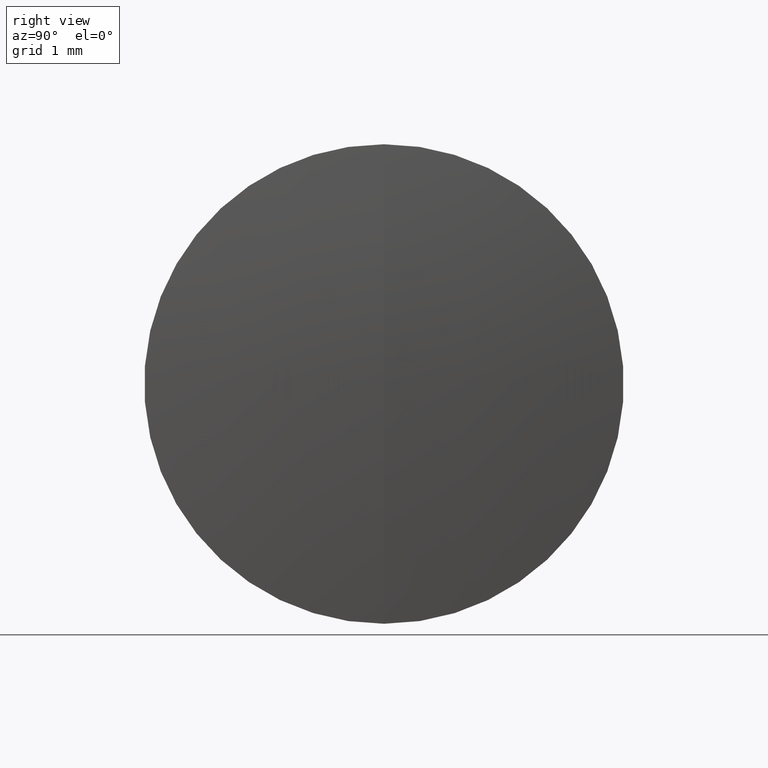
[diagram: clean part render]
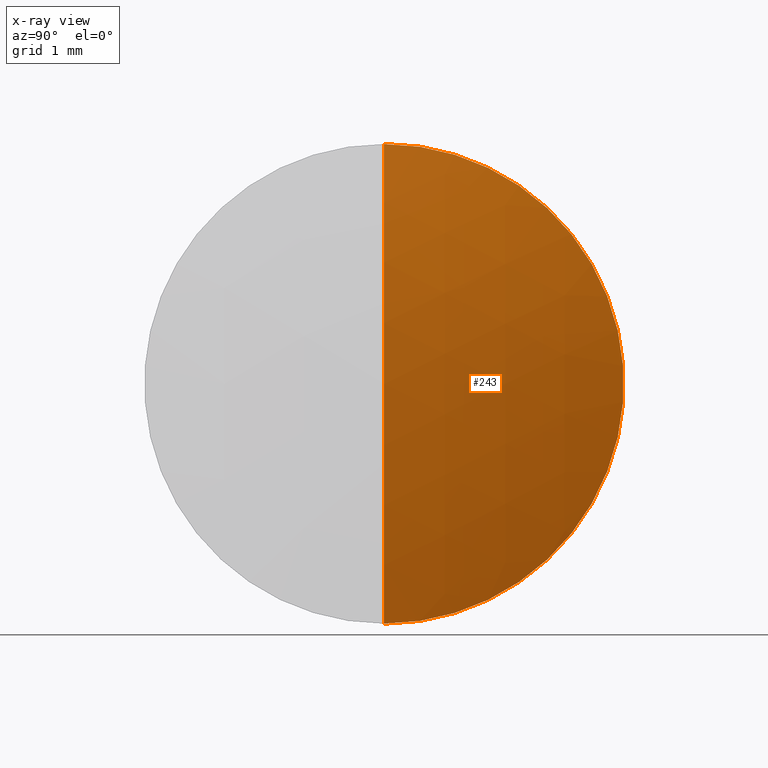
[diagram: x-ray — body ghosted, one internal face saturated and labeled with its STEP entity id]
A machine part, right view, then the same camera in x-ray: the body is ghosted and one INTERNAL B-rep face — a face not visible from any outside direction — is saturated and labeled: STEP entity #243.
In plain terms, the highlighted spherical surface has radius 9.993 mm.
Its self-contained STEP definition (entity closure, byte-faithful):
#3 = AXIS2_PLACEMENT_3D ( 'NONE', #249, #35, #138 ) ;
#18 = CIRCLE ( 'NONE', #134, 9.992999999999998600 ) ;
#23 = CARTESIAN_POINT ( 'NONE',  ( 8.563134654860508700, 0.0000000000000000000, 0.0000000000000000000 ) ) ;
#25 = DIRECTION ( 'NONE',  ( 0.0000000000000000000, 0.0000000000000000000, 1.000000000000000000 ) ) ;
#33 = AXIS2_PLACEMENT_3D ( 'NONE', #23, #217, #25 ) ;
#35 = DIRECTION ( 'NONE',  ( 0.0000000000000000000, -1.000000000000000000, 0.0000000000000000000 ) ) ;
#65 = CIRCLE ( 'NONE', #33, 3.149999999999999900 ) ;
#67 = EDGE_CURVE ( 'NONE', #141, #200, #18, .T. ) ;
#78 = CARTESIAN_POINT ( 'NONE',  ( -0.9204062977584012200, 0.0000000000000000000, -1.505155105265747400E-016 ) ) ;
#80 = AXIS2_PLACEMENT_3D ( 'NONE', #334, #156, #239 ) ;
#134 = AXIS2_PLACEMENT_3D ( 'NONE', #78, #253, #192 ) ;
#138 = DIRECTION ( 'NONE',  ( 0.0000000000000000000, 0.0000000000000000000, -1.000000000000000000 ) ) ;
#141 = VERTEX_POINT ( 'NONE', #158 ) ;
#143 = FACE_OUTER_BOUND ( 'NONE', #275, .T. ) ;
#156 = DIRECTION ( 'NONE',  ( 0.0000000000000000000, 1.000000000000000000, 0.0000000000000000000 ) ) ;
#158 = CARTESIAN_POINT ( 'NONE',  ( 9.072593702241597700, 0.0000000000000000000, 4.613792626674001800E-016 ) ) ;
#160 = ORIENTED_EDGE ( 'NONE', *, *, #218, .F. ) ;
#170 = EDGE_CURVE ( 'NONE', #141, #171, #233, .T. ) ;
#171 = VERTEX_POINT ( 'NONE', #199 ) ;
#192 = DIRECTION ( 'NONE',  ( 0.0000000000000000000, -1.224646799147353200E-016, 1.000000000000000000 ) ) ;
#199 = CARTESIAN_POINT ( 'NONE',  ( 8.563134654860508700, 0.0000000000000000000, 3.149999999999999900 ) ) ;
#200 = VERTEX_POINT ( 'NONE', #257 ) ;
#207 = ORIENTED_EDGE ( 'NONE', *, *, #67, .T. ) ;
#217 = DIRECTION ( 'NONE',  ( -1.000000000000000000, -0.0000000000000000000, -0.0000000000000000000 ) ) ;
#218 = EDGE_CURVE ( 'NONE', #171, #200, #65, .T. ) ;
#233 = CIRCLE ( 'NONE', #3, 9.992999999999998600 ) ;
#239 = DIRECTION ( 'NONE',  ( 0.0000000000000000000, 0.0000000000000000000, 1.000000000000000000 ) ) ;
#243 = ADVANCED_FACE ( 'NONE', ( #143 ), #321, .T. ) ;
#249 = CARTESIAN_POINT ( 'NONE',  ( -0.9204062977584012200, 0.0000000000000000000, -1.505155105265747400E-016 ) ) ;
#253 = DIRECTION ( 'NONE',  ( -0.0000000000000000000, 1.000000000000000000, 1.224646799147353200E-016 ) ) ;
#257 = CARTESIAN_POINT ( 'NONE',  ( 8.563134654860508700, 3.857637417314162700E-016, -3.149999999999999900 ) ) ;
#275 = EDGE_LOOP ( 'NONE', ( #328, #207, #160 ) ) ;
#321 = SPHERICAL_SURFACE ( 'NONE', #80, 9.992999999999998600 ) ;
#328 = ORIENTED_EDGE ( 'NONE', *, *, #170, .F. ) ;
#334 = CARTESIAN_POINT ( 'NONE',  ( -0.9204062977584012200, 0.0000000000000000000, -1.505155105265747400E-016 ) ) ;